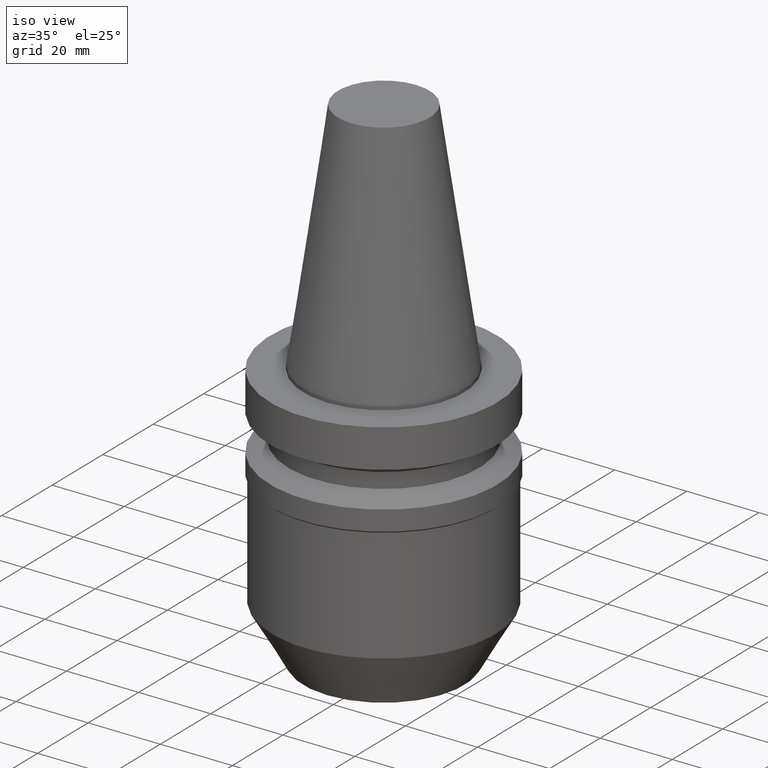
[diagram: clean part render]
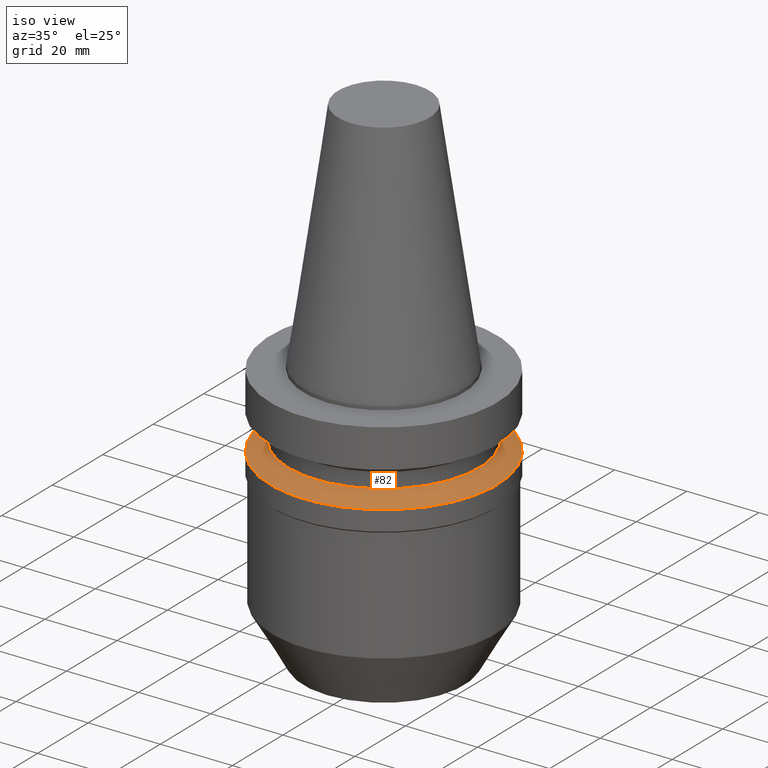
[diagram: same view with one face highlighted and labeled with its STEP entity id]
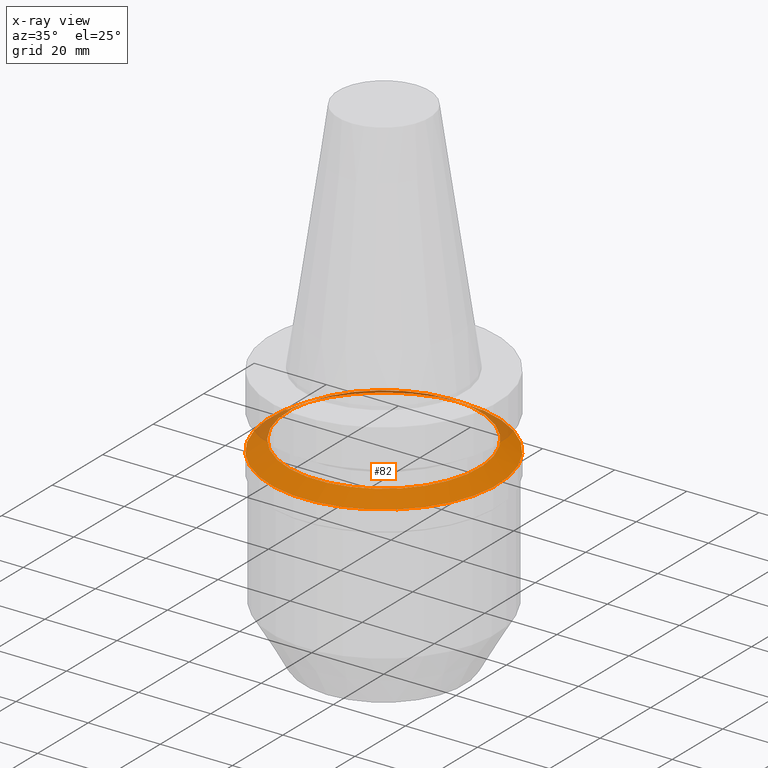
[diagram: x-ray of the same camera — body ghosted, the highlighted face saturated]
A machine part, iso view. The second image highlights one B-rep face of the part: STEP entity #82.
The next image is the same camera in x-ray: the body ghosted, the highlighted face saturated — about 12% of this face is hidden behind the body in this view.
In plain terms, the highlighted conical surface has half-angle 60 deg.
Its self-contained STEP definition (entity closure, byte-faithful):
#82=ADVANCED_FACE('',(#111,#112),#113,.T.);
#111=FACE_BOUND('',#154,.T.);
#112=FACE_BOUND('',#155,.T.);
#113=CONICAL_SURFACE('',#156,29.0000000000007,1.04719755119653);
#154=EDGE_LOOP('',(#211));
#155=EDGE_LOOP('',(#212));
#156=AXIS2_PLACEMENT_3D('',#213,#214,#215);
#211=ORIENTED_EDGE('',*,*,#257,.F.);
#212=ORIENTED_EDGE('',*,*,#256,.T.);
#213=CARTESIAN_POINT('',(1.23422829231057E-015,2.46845658462114E-015,-20.1564776582095));
#214=DIRECTION('',(6.12323399573677E-017,1.22464679914709E-016,-1.0));
#215=DIRECTION('',(-1.2325951644078E-032,1.0,1.22464679914709E-016));
#256=EDGE_CURVE('',#276,#276,#277,.T.);
#257=EDGE_CURVE('',#278,#278,#279,.T.);
#276=VERTEX_POINT('',#304);
#277=CIRCLE('',#305,31.5000000000014);
#278=VERTEX_POINT('',#306);
#279=CIRCLE('',#307,26.5000000000001);
#304=CARTESIAN_POINT('',(1.32260956220435E-015,31.5000000000014,-21.5998533311842));
#305=AXIS2_PLACEMENT_3D('',#338,#339,#340);
#306=CARTESIAN_POINT('',(1.14584702241679E-015,26.5000000000001,-18.7131019852348));
#307=AXIS2_PLACEMENT_3D('',#341,#342,#343);
#338=CARTESIAN_POINT('',(1.32260956220435E-015,2.6452191244087E-015,-21.5998533311842));
#339=DIRECTION('',(-6.12323399573677E-017,-1.22464679914765E-016,1.0));
#340=DIRECTION('',(-1.23259516440778E-032,1.0,1.22464679914765E-016));
#341=CARTESIAN_POINT('',(1.14584702241679E-015,2.29169404483358E-015,-18.7131019852348));
#342=DIRECTION('',(-6.12323399573677E-017,-1.22464679914764E-016,1.0));
#343=DIRECTION('',(-1.23259516440783E-032,1.0,1.22464679914764E-016));